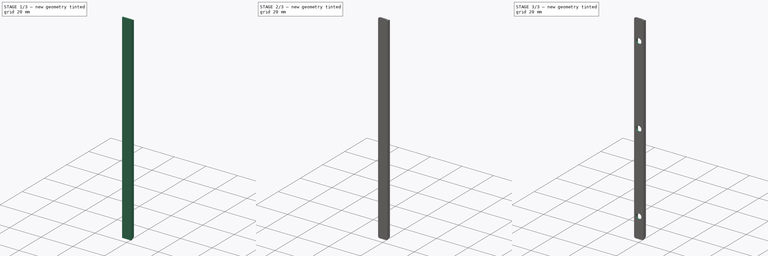
[diagram: build sequence overview — one tinted view per stage of 3, left to right]
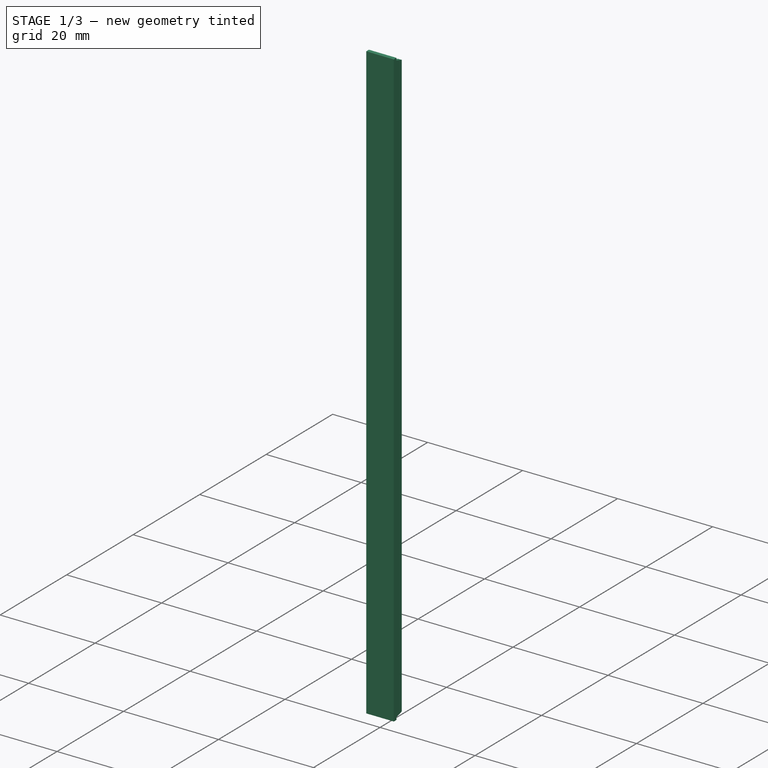
[diagram: stage 1 of 3 — iso view after this stage's code; geometry added in this stage tinted green]
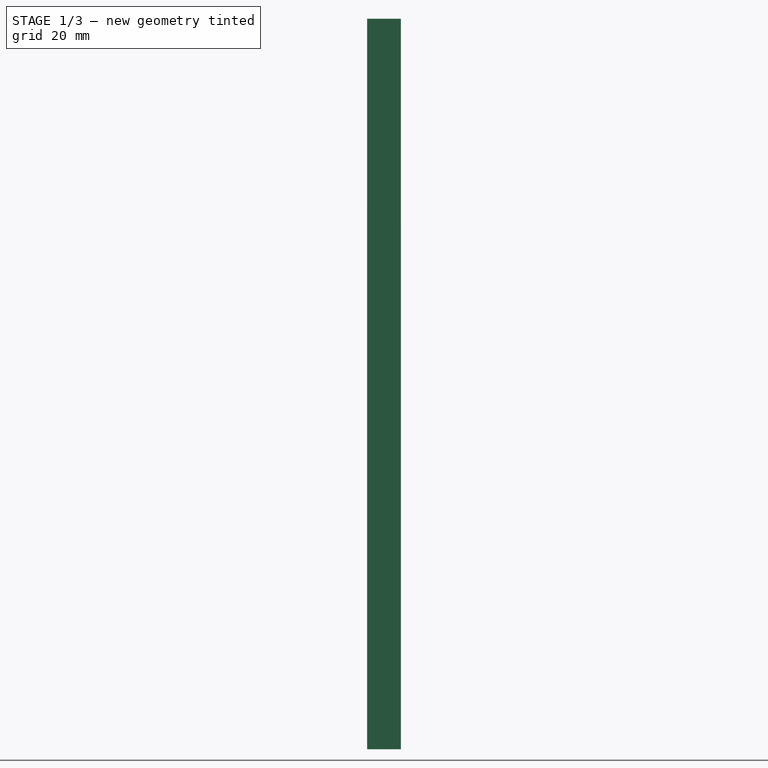
[diagram: stage 1 of 3 — front view after this stage's code; geometry added in this stage tinted green]
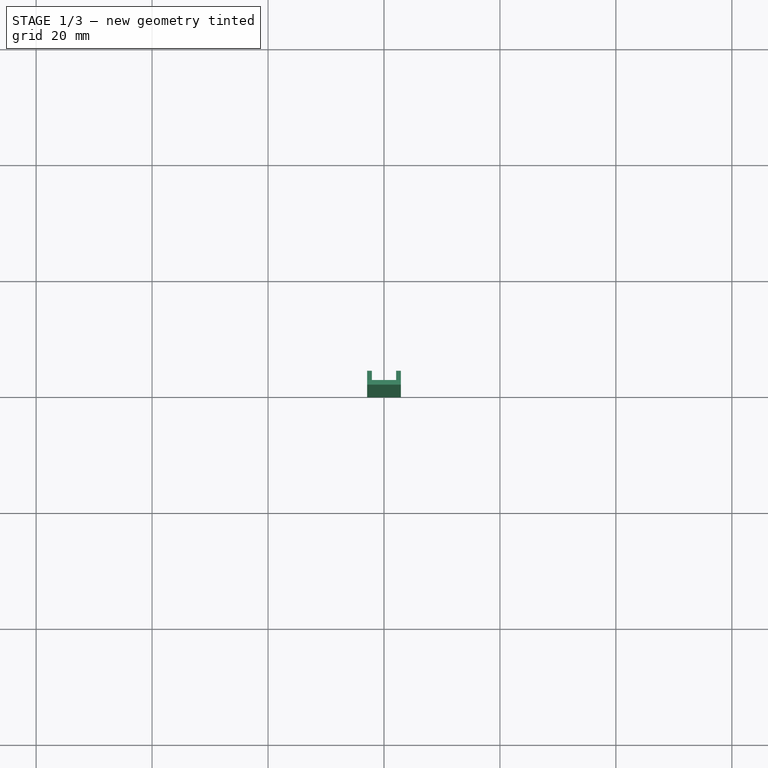
[diagram: stage 1 of 3 — top view after this stage's code; geometry added in this stage tinted green]
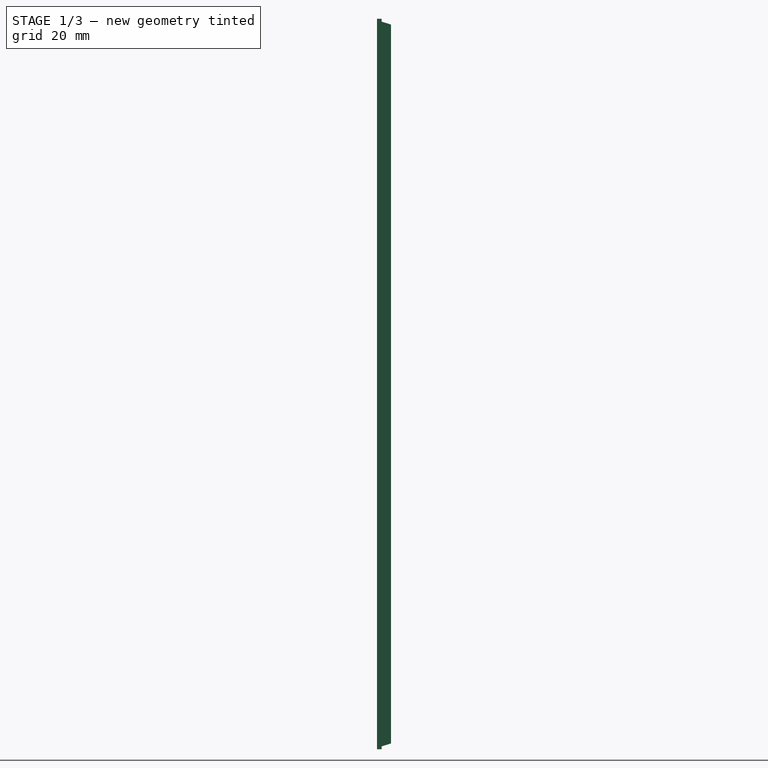
[diagram: stage 1 of 3 — right view after this stage's code; geometry added in this stage tinted green]
FCSTD DOCUMENT  (FreeCAD 0.16R6698 (Git))
Label: lid
License: All rights reserved
LicenseURL: http://en.wikipedia.org/wiki/All_rights_reserved
objects: Sketcher::SketchObject×3, PartDesign::Pocket×2, PartDesign::Fillet×2, PartDesign::Pad×1
note: 11 computed .brp shape members not serialized (recipe doc carries the construction recipe); baked Part::Feature solids carry a one-line shape summary decoded from their .brp

FEATURE [Sketcher::SketchObject] Sketch
  sketch-geometry (8):
    g0: LineSegment StartX=-2.9 StartY=0 StartZ=0 EndX=2.9 EndY=0 EndZ=0
    g1: LineSegment StartX=2.9 StartY=0 StartZ=0 EndX=2.9 EndY=2.4 EndZ=0
    g2: LineSegment StartX=2.9 StartY=2.4 StartZ=0 EndX=2.1 EndY=2.4 EndZ=0
    g3: LineSegment StartX=-2.9 StartY=2.4 StartZ=0 EndX=-2.9 EndY=0 EndZ=0
    g4: LineSegment StartX=2.1 StartY=2.4 StartZ=0 EndX=2.1 EndY=0.8 EndZ=0
    g5: LineSegment StartX=2.1 StartY=0.8 StartZ=0 EndX=-2.1 EndY=0.8 EndZ=0
    g6: LineSegment StartX=-2.1 StartY=0.8 StartZ=0 EndX=-2.1 EndY=2.4 EndZ=0
    g7: LineSegment StartX=-2.1 StartY=2.4 StartZ=0 EndX=-2.9 EndY=2.4 EndZ=0
  constraints (24):
    c: Coincident(g0,g1)
    c: Coincident(g1,g2)
    c: Coincident(g7,g3)
    c: Coincident(g3,g0)
    c: Horizontal(g0)
    c: Horizontal(g2)
    c: Vertical(g1)
    c: Vertical(g3)
    c: PointOnObject(g0,g-1)
    c: Symmetric(g7,g1,g-2)
    c: DistanceY(g3,g3) = 2.4
    c: DistanceX(g0,g0) = 5.8
    c: Coincident(g4,g5)
    c: Coincident(g5,g6)
    c: Horizontal(g5)
    c: Vertical(g4)
    c: Vertical(g6)
    c: PointOnObject(g6,g2)
    c: PointOnObject(g2,g4)
    c: PointOnObject(g7,g6)
    c: Tangent(g2,g7)
    c: DistanceX(g7,g7) = 0.8
    c: DistanceX(g2,g2) = 0.8
    c: DistanceY(g6,g6) = 1.6
FEATURE [PartDesign::Pad] Pad
  Length = 126
  Length2 = 100
  Sketch = -> Sketch
  Type = 0
FEATURE [Sketcher::SketchObject] Sketch001
  Placement = pos=(2.9,0,0) rot=(0.57735,0.57735,0.57735;2.0944rad)
  Support = -> Pad [Face2]
  sketch-geometry (8):
    g0: LineSegment StartX=0.8 StartY=0 StartZ=0 EndX=0.8 EndY=0.5 EndZ=0
    g1: LineSegment StartX=0.8 StartY=0.5 StartZ=0 EndX=2.4 EndY=1 EndZ=0
    g2: LineSegment StartX=2.4 StartY=1 StartZ=0 EndX=2.4 EndY=0 EndZ=0
    g3: LineSegment StartX=2.4 StartY=0 StartZ=0 EndX=0.8 EndY=0 EndZ=0
    g4: LineSegment StartX=0.8 StartY=126 StartZ=0 EndX=2.4 EndY=126 EndZ=0
    g5: LineSegment StartX=2.4 StartY=126 StartZ=0 EndX=2.4 EndY=125 EndZ=0
    g6: LineSegment StartX=2.4 StartY=125 StartZ=0 EndX=0.8 EndY=125.5 EndZ=0
    g7: LineSegment StartX=0.8 StartY=125.5 StartZ=0 EndX=0.8 EndY=126 EndZ=0
  constraints (12):
    c: Vertical(g0)
    c: Coincident(g0,g1)
    c: Coincident(g1,g2)
    c: Vertical(g2)
    c: Coincident(g2,g3)
    c: Coincident(g3,g0)
    c: Coincident(g4,g5)
    c: Vertical(g5)
    c: Coincident(g5,g6)
    c: Coincident(g6,g7)
    c: Coincident(g7,g4)
    c: Vertical(g7)
FEATURE [PartDesign::Pocket] Pocket
  Length = 5
  Sketch = -> Sketch001
  Type = 1
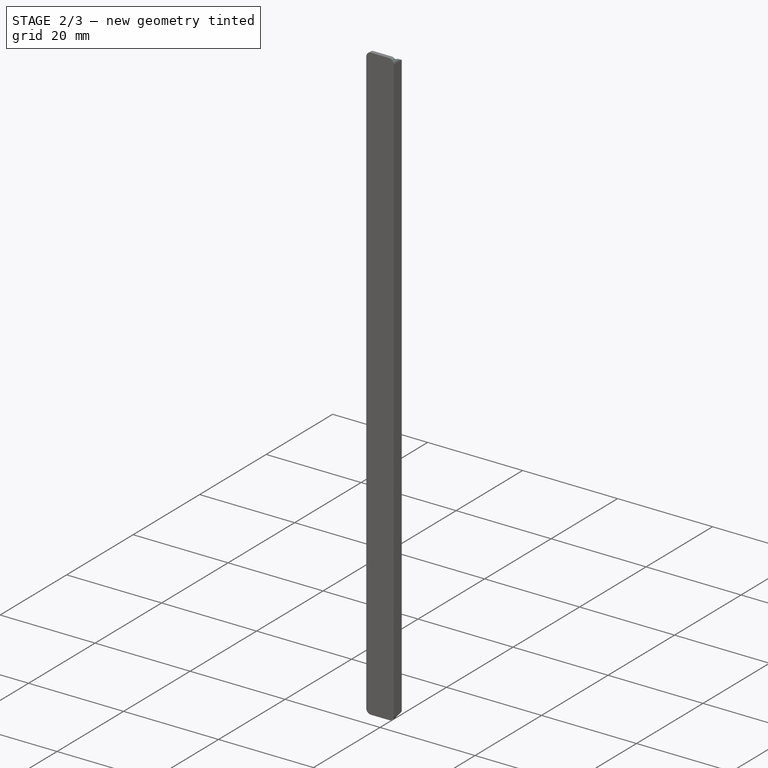
[diagram: stage 2 of 3 — iso view after this stage's code; geometry added in this stage tinted green]
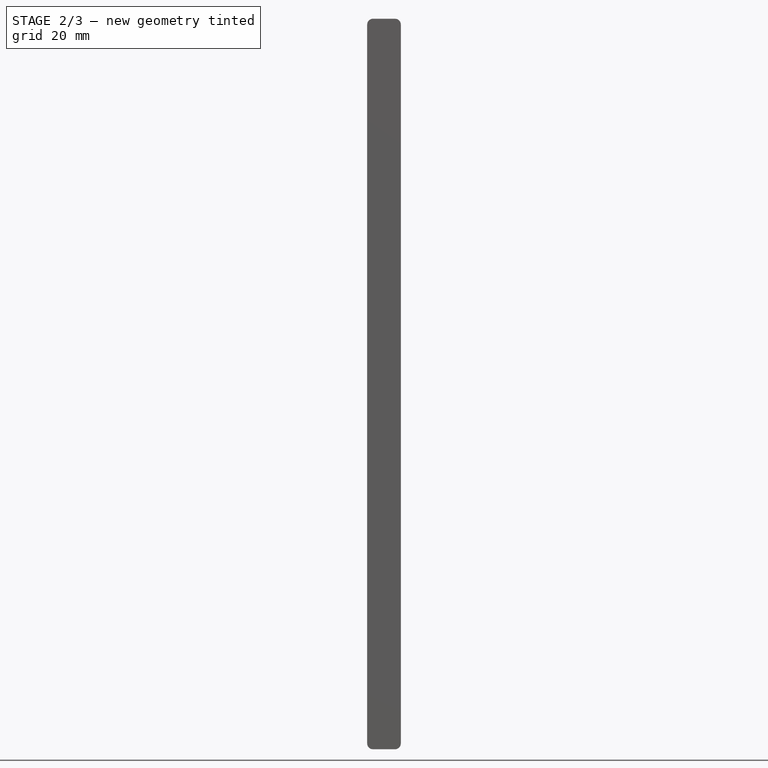
[diagram: stage 2 of 3 — front view after this stage's code; geometry added in this stage tinted green]
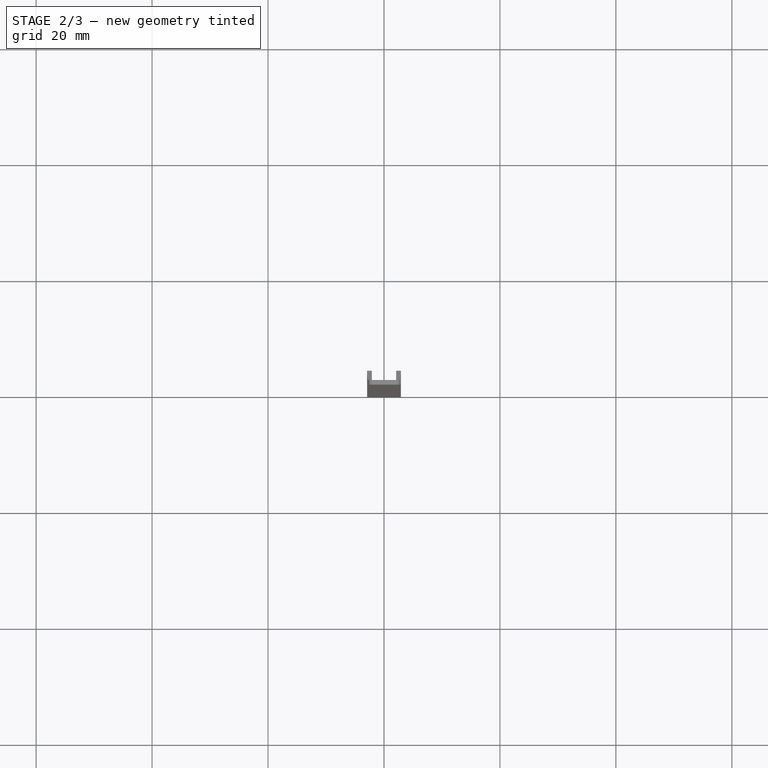
[diagram: stage 2 of 3 — top view after this stage's code; geometry added in this stage tinted green]
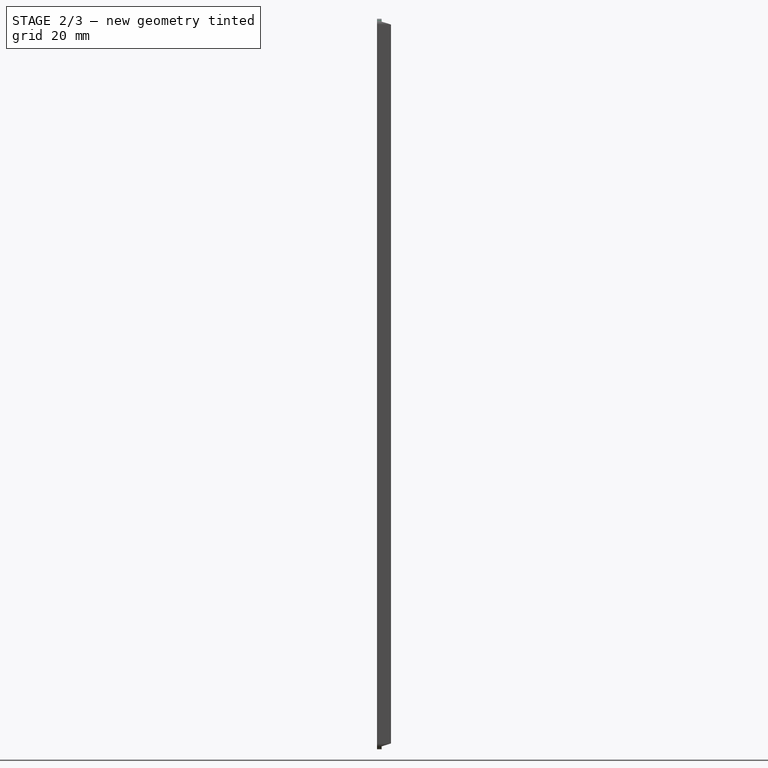
[diagram: stage 2 of 3 — right view after this stage's code; geometry added in this stage tinted green]
FEATURE [PartDesign::Fillet] Fillet
  Base = -> Pocket [Edge18,Edge8,Edge12,Edge7]
  Radius = 1
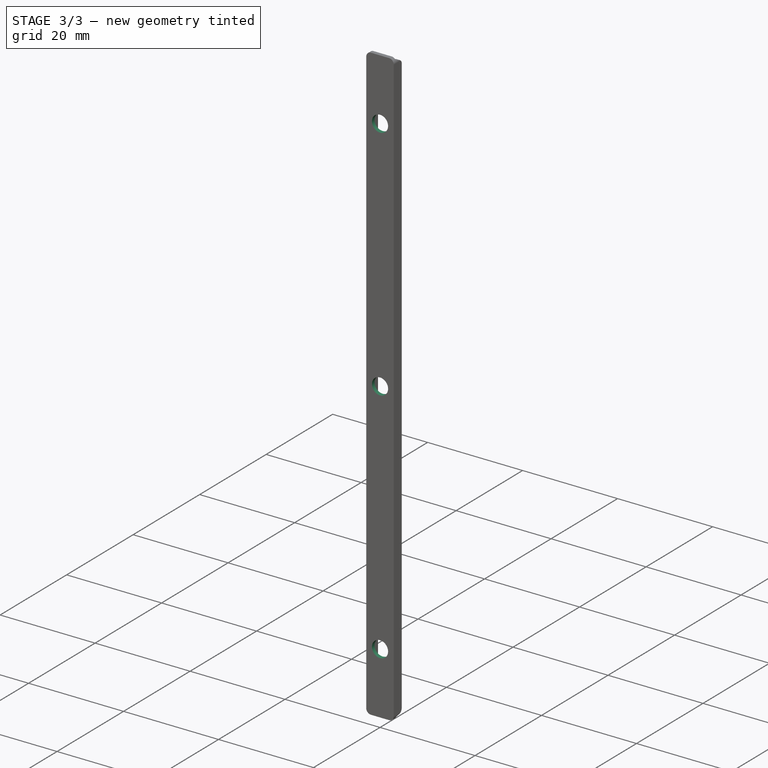
[diagram: stage 3 of 3 — iso view after this stage's code; geometry added in this stage tinted green]
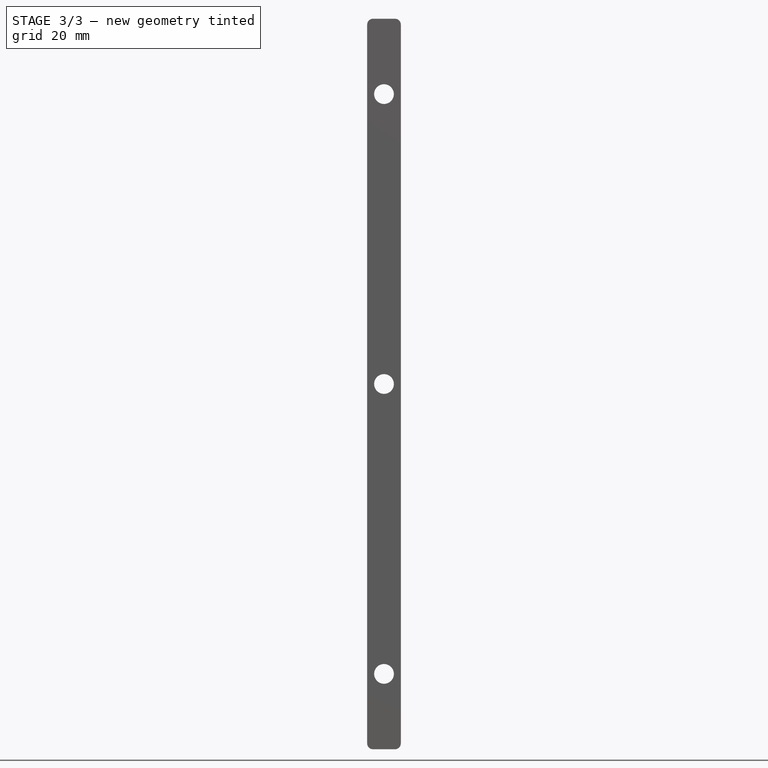
[diagram: stage 3 of 3 — front view after this stage's code; geometry added in this stage tinted green]
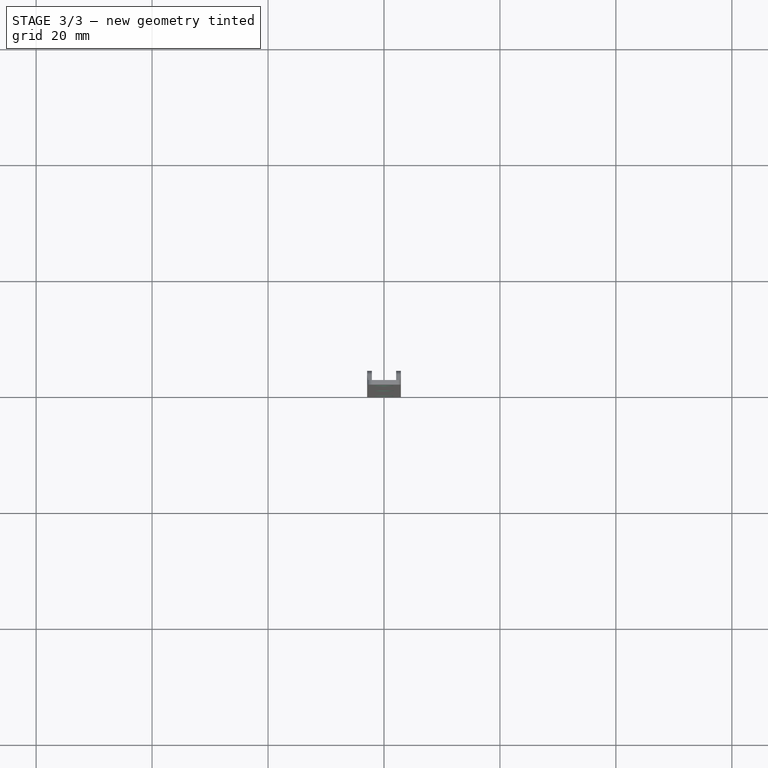
[diagram: stage 3 of 3 — top view after this stage's code; geometry added in this stage tinted green]
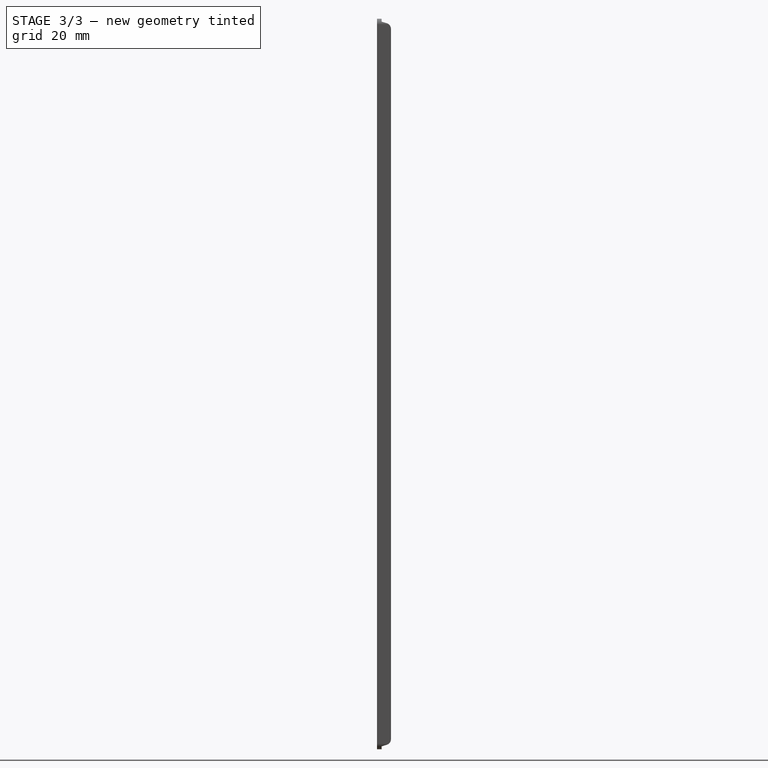
[diagram: stage 3 of 3 — right view after this stage's code; geometry added in this stage tinted green]
FEATURE [PartDesign::Fillet] Fillet001
  Base = -> Fillet [Edge41,Edge29,Edge43,Edge30]
  Radius = 1
FEATURE [Sketcher::SketchObject] Sketch002
  Placement = pos=(0,0,0) rot=(1,0,0;1.5708rad)
  Support = -> Fillet001 [Face4]
  sketch-geometry (3):
    g0: Circle CenterX=0 CenterY=63 CenterZ=0 NormalX=0 NormalY=0 NormalZ=1 Radius=1.7
    g1: Circle CenterX=0 CenterY=113 CenterZ=0 NormalX=0 NormalY=0 NormalZ=1 Radius=1.7
    g2: Circle CenterX=0 CenterY=13 CenterZ=0 NormalX=0 NormalY=0 NormalZ=1 Radius=1.7
  constraints (9):
    c: PointOnObject(g1,g-2)
    c: PointOnObject(g2,g-2)
    c: PointOnObject(g0,g-2)
    c: Equal(g1,g0)
    c: Equal(g0,g2)
    c: Radius(g1) = 1.7
    c: DistanceY(g-1,g0) = 63
    c: DistanceY(g2,g0) = 50
    c: DistanceY(g0,g1) = 50
FEATURE [PartDesign::Pocket] Pocket001
  Length = 5
  Sketch = -> Sketch002
  Type = 0
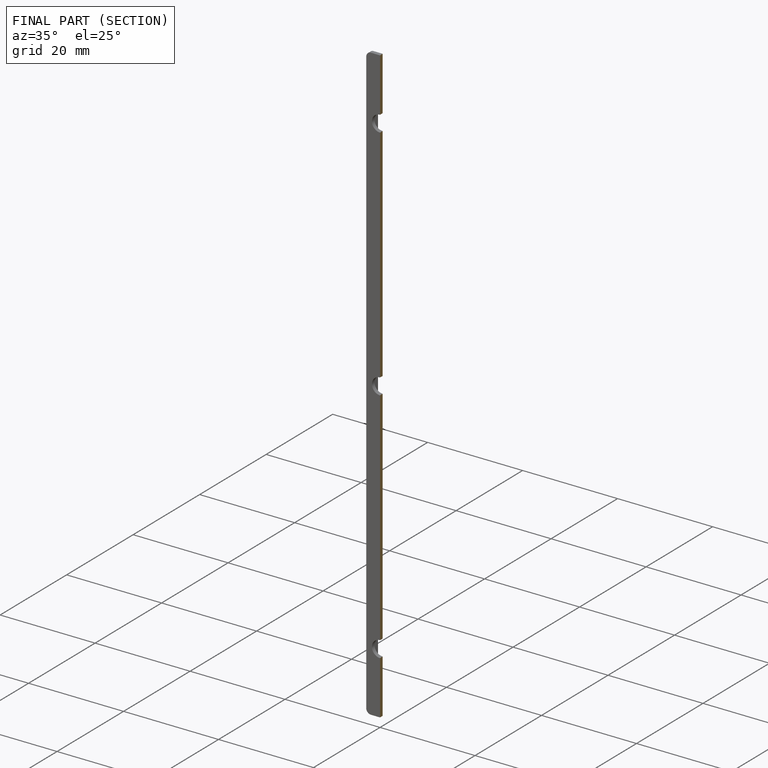
[diagram: finished part — half-section view (interior)]
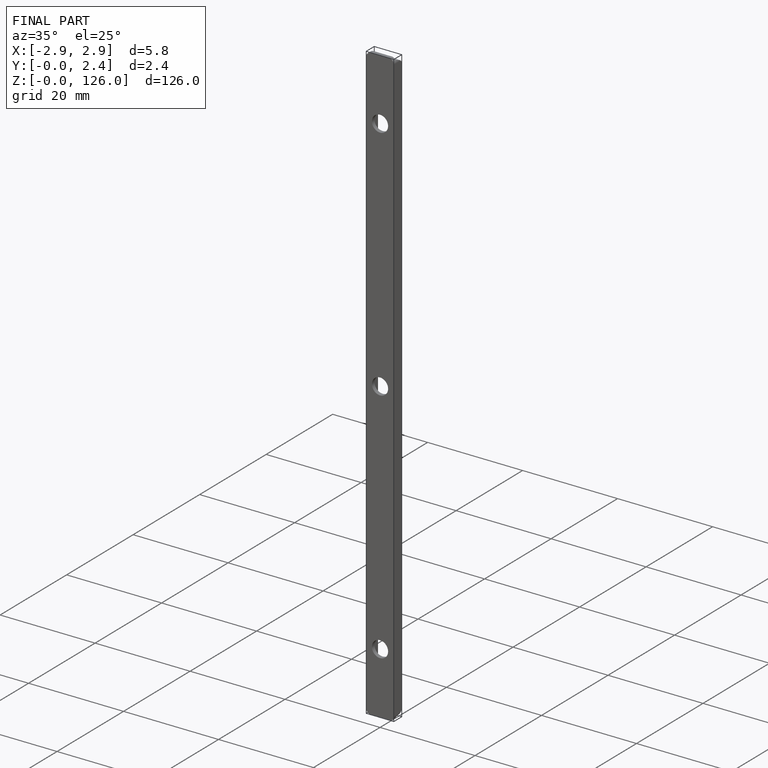
[diagram: finished part — iso view with bounding-box wireframe]
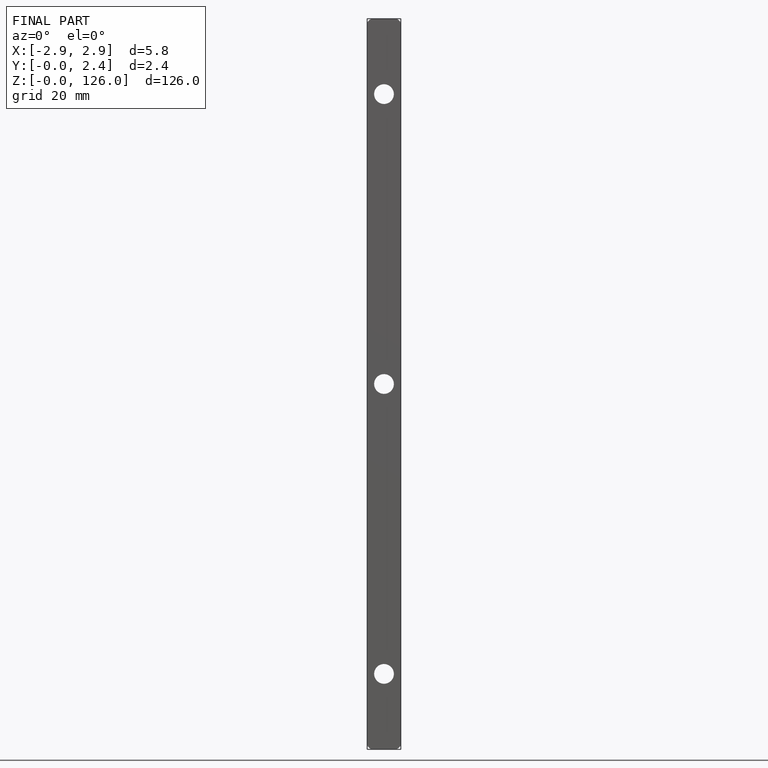
[diagram: finished part — front view with bounding-box wireframe]
